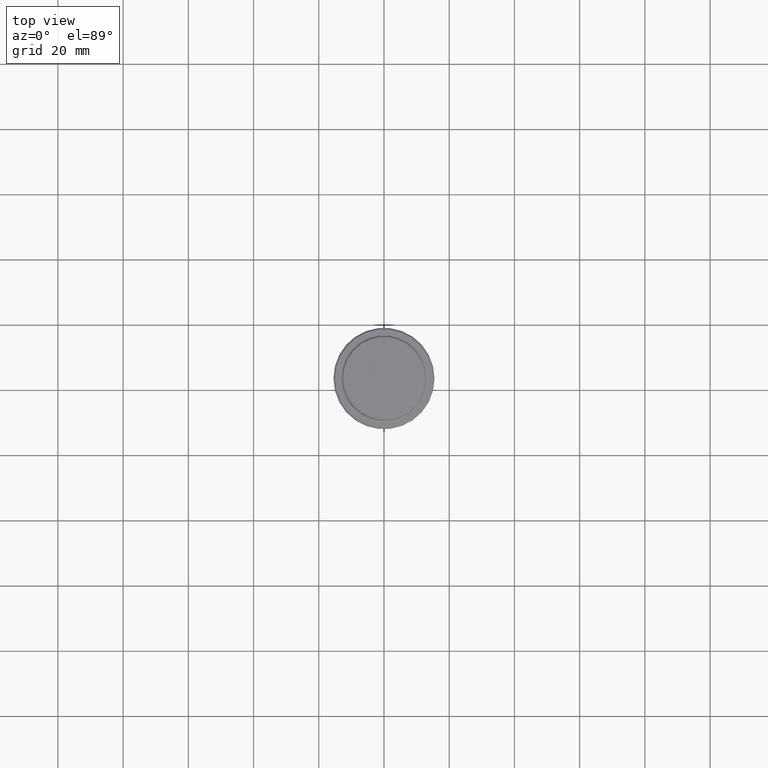
[diagram: clean part render]
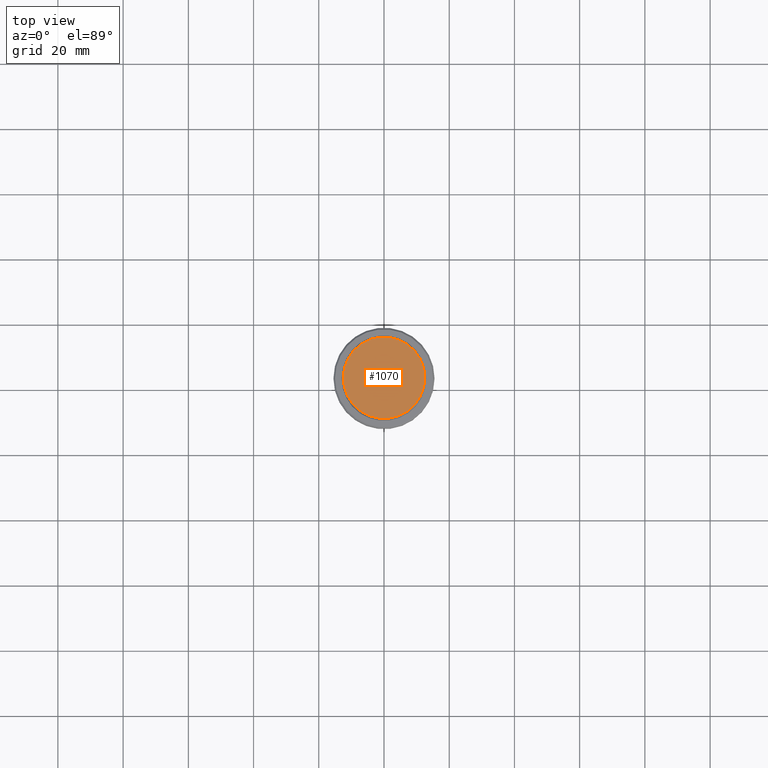
[diagram: same view with one face highlighted and labeled with its STEP entity id]
A machine part, top view. The second image highlights one B-rep face of the part: STEP entity #1070.
In plain terms, the highlighted planar face has unit normal (0, -0, 1).
Its self-contained STEP definition (entity closure, byte-faithful):
#32 = CIRCLE ( 'NONE', #911, 12.50000000000001243 ) ;
#177 = CARTESIAN_POINT ( 'NONE',  ( 0.000000000000000000, 0.000000000000000000, 0.000000000000000000 ) ) ;
#316 = FACE_OUTER_BOUND ( 'NONE', #1327, .T. ) ;
#322 = PLANE ( 'NONE',  #1209 ) ;
#338 = EDGE_CURVE ( 'NONE', #803, #597, #32, .T. ) ;
#505 = ORIENTED_EDGE ( 'NONE', *, *, #338, .T. ) ;
#587 = CARTESIAN_POINT ( 'NONE',  ( -12.50000000000001243, 0.000000000000000000, 0.000000000000000000 ) ) ;
#597 = VERTEX_POINT ( 'NONE', #1297 ) ;
#613 = DIRECTION ( 'NONE',  ( 1.000000000000000000, 0.000000000000000000, 0.000000000000000000 ) ) ;
#727 = DIRECTION ( 'NONE',  ( 0.000000000000000000, -0.000000000000000000, 1.000000000000000000 ) ) ;
#803 = VERTEX_POINT ( 'NONE', #587 ) ;
#853 = EDGE_CURVE ( 'NONE', #597, #803, #1237, .T. ) ;
#857 = CARTESIAN_POINT ( 'NONE',  ( 0.000000000000000000, 0.000000000000000000, 0.000000000000000000 ) ) ;
#891 = AXIS2_PLACEMENT_3D ( 'NONE', #946, #1158, #613 ) ;
#911 = AXIS2_PLACEMENT_3D ( 'NONE', #177, #1248, #1370 ) ;
#946 = CARTESIAN_POINT ( 'NONE',  ( 0.000000000000000000, 0.000000000000000000, 0.000000000000000000 ) ) ;
#984 = ORIENTED_EDGE ( 'NONE', *, *, #853, .T. ) ;
#1070 = ADVANCED_FACE ( 'NONE', ( #316 ), #322, .T. ) ;
#1080 = DIRECTION ( 'NONE',  ( 1.000000000000000000, 0.000000000000000000, 0.000000000000000000 ) ) ;
#1158 = DIRECTION ( 'NONE',  ( -0.000000000000000000, -0.000000000000000000, 1.000000000000000000 ) ) ;
#1209 = AXIS2_PLACEMENT_3D ( 'NONE', #857, #727, #1080 ) ;
#1237 = CIRCLE ( 'NONE', #891, 12.50000000000001243 ) ;
#1248 = DIRECTION ( 'NONE',  ( -0.000000000000000000, -0.000000000000000000, 1.000000000000000000 ) ) ;
#1297 = CARTESIAN_POINT ( 'NONE',  ( 12.50000000000001243, 1.561424668912876097E-15, 0.000000000000000000 ) ) ;
#1327 = EDGE_LOOP ( 'NONE', ( #505, #984 ) ) ;
#1370 = DIRECTION ( 'NONE',  ( 1.000000000000000000, 0.000000000000000000, 0.000000000000000000 ) ) ;